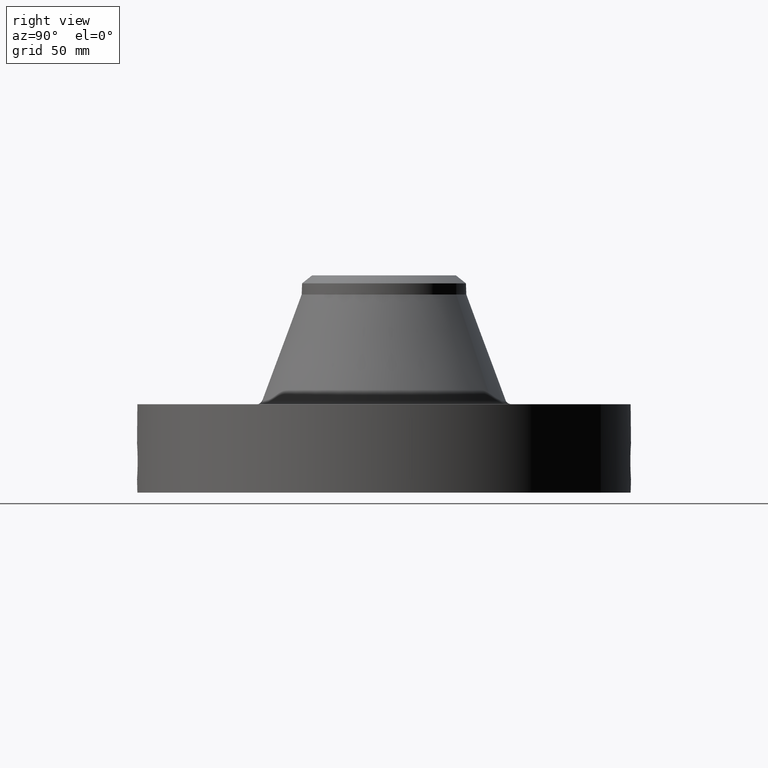
[diagram: clean part render]
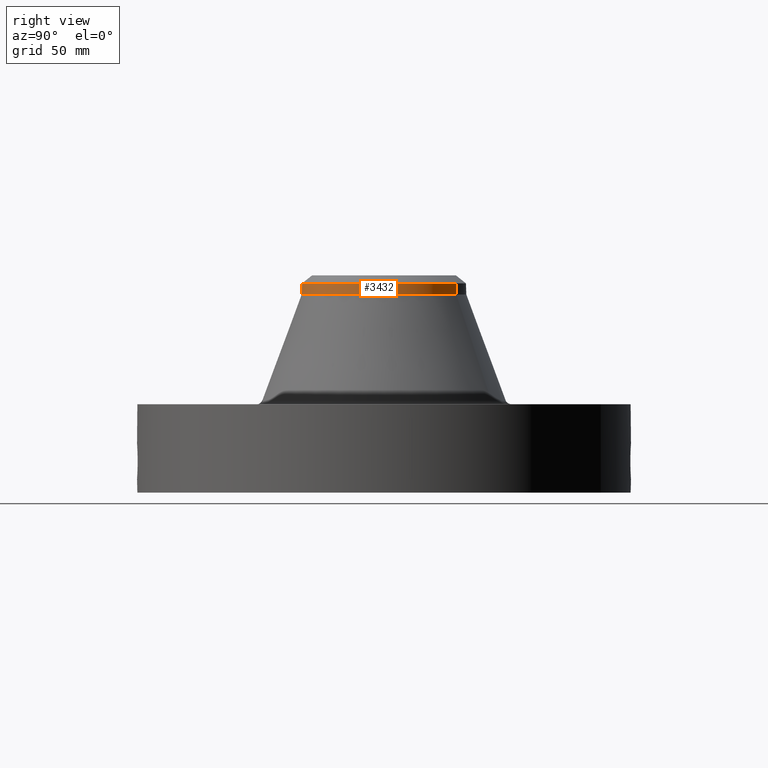
[diagram: same view with one face highlighted and labeled with its STEP entity id]
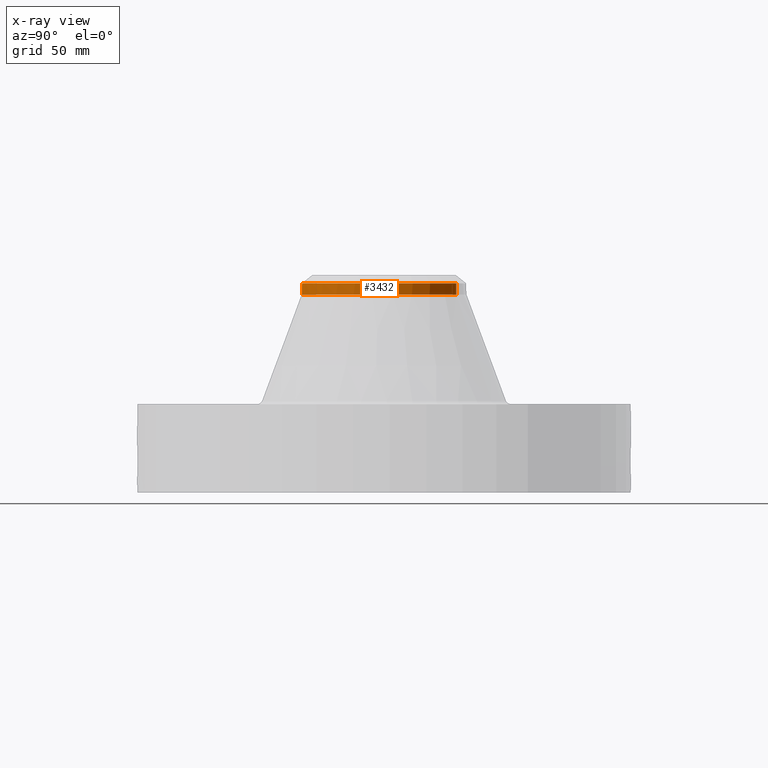
[diagram: x-ray of the same camera — body ghosted, the highlighted face saturated]
A machine part, right view. The second image highlights one B-rep face of the part: STEP entity #3432.
The next image is the same camera in x-ray: the body ghosted, the highlighted face saturated — about 0% of this face is hidden behind the body in this view.
In plain terms, the highlighted cylindrical surface (partial cylindrical patch) has radius 44.45 mm, axis along (0, 0, -1).
Its self-contained STEP definition (entity closure, byte-faithful):
#2619=AXIS2_PLACEMENT_3D('Circle Axis2P3D',#2617,#2618,$) ;
#3074=AXIS2_PLACEMENT_3D('Circle Axis2P3D',#3072,#3073,$) ;
#3087=AXIS2_PLACEMENT_3D('Circle Axis2P3D',#3085,#3086,$) ;
#3413=AXIS2_PLACEMENT_3D('Cylinder Axis2P3D',#3410,#3411,#3412) ;
#2614=CARTESIAN_POINT('Vertex',(0.838994692561,1.53576948331,4.46400087906)) ;
#2617=CARTESIAN_POINT('Axis2P3D Location',(0.,0.,4.46400087906)) ;
#2621=CARTESIAN_POINT('Vertex',(-0.838994692561,-1.53576948331,4.46400087906)) ;
#3055=CARTESIAN_POINT('Vertex',(0.838994692561,-1.53576948331,4.7002213515)) ;
#3069=CARTESIAN_POINT('Vertex',(-0.838994692561,-1.53576948331,4.7002213515)) ;
#3072=CARTESIAN_POINT('Axis2P3D Location',(0.,0.,4.7002213515)) ;
#3085=CARTESIAN_POINT('Axis2P3D Location',(0.,0.,4.7002213515)) ;
#3089=CARTESIAN_POINT('Vertex',(0.838994692561,1.53576948331,4.7002213515)) ;
#3410=CARTESIAN_POINT('Axis2P3D Location',(0.,0.,2.56000000001)) ;
#3415=CARTESIAN_POINT('Line Origine',(-0.838994692561,-1.53576948331,4.58211111528)) ;
#3420=CARTESIAN_POINT('Line Origine',(0.838994692561,1.53576948331,4.58211111528)) ;
#2618=DIRECTION('Axis2P3D Direction',(0.,0.,-0.0393700787402)) ;
#3073=DIRECTION('Axis2P3D Direction',(0.,0.,-0.0393700787402)) ;
#3086=DIRECTION('Axis2P3D Direction',(0.,0.,-0.0393700787402)) ;
#3411=DIRECTION('Axis2P3D Direction',(0.,0.,-0.0393700787402)) ;
#3412=DIRECTION('Axis2P3D XDirection',(-0.0188750212049,-0.0345504945626,0.)) ;
#3416=DIRECTION('Vector Direction',(0.,0.,-0.0393700787402)) ;
#3421=DIRECTION('Vector Direction',(0.,0.,-0.0393700787402)) ;
#3417=VECTOR('Line Direction',#3416,0.0393700787402) ;
#3422=VECTOR('Line Direction',#3421,0.0393700787402) ;
#3426=ORIENTED_EDGE('',*,*,#3419,.F.) ;
#3427=ORIENTED_EDGE('',*,*,#2623,.F.) ;
#3428=ORIENTED_EDGE('',*,*,#3424,.T.) ;
#3429=ORIENTED_EDGE('',*,*,#3091,.F.) ;
#3430=ORIENTED_EDGE('',*,*,#3076,.T.) ;
#3432=ADVANCED_FACE('PartBody',(#3431),#3414,.T.) ;
#2620=CIRCLE('generated circle',#2619,1.75000000001) ;
#3075=CIRCLE('generated circle',#3074,1.75000000001) ;
#3088=CIRCLE('generated circle',#3087,1.75000000001) ;
#3414=CYLINDRICAL_SURFACE('generated cylinder',#3413,1.75000000001) ;
#2623=EDGE_CURVE('',#2615,#2622,#2620,.T.) ;
#3076=EDGE_CURVE('',#3056,#3070,#3075,.T.) ;
#3091=EDGE_CURVE('',#3056,#3090,#3088,.F.) ;
#3419=EDGE_CURVE('',#2622,#3070,#3418,.F.) ;
#3424=EDGE_CURVE('',#2615,#3090,#3423,.F.) ;
#3425=EDGE_LOOP('',(#3426,#3427,#3428,#3429,#3430)) ;
#3431=FACE_OUTER_BOUND('',#3425,.T.) ;
#3418=LINE('Line',#3415,#3417) ;
#3423=LINE('Line',#3420,#3422) ;
#2615=VERTEX_POINT('',#2614) ;
#2622=VERTEX_POINT('',#2621) ;
#3056=VERTEX_POINT('',#3055) ;
#3070=VERTEX_POINT('',#3069) ;
#3090=VERTEX_POINT('',#3089) ;